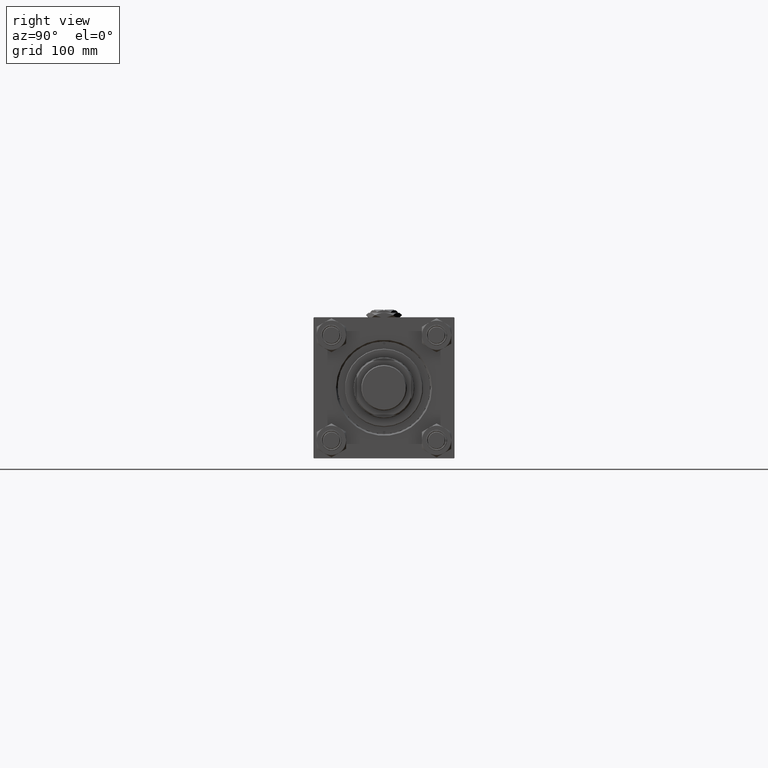
[diagram: clean part render]
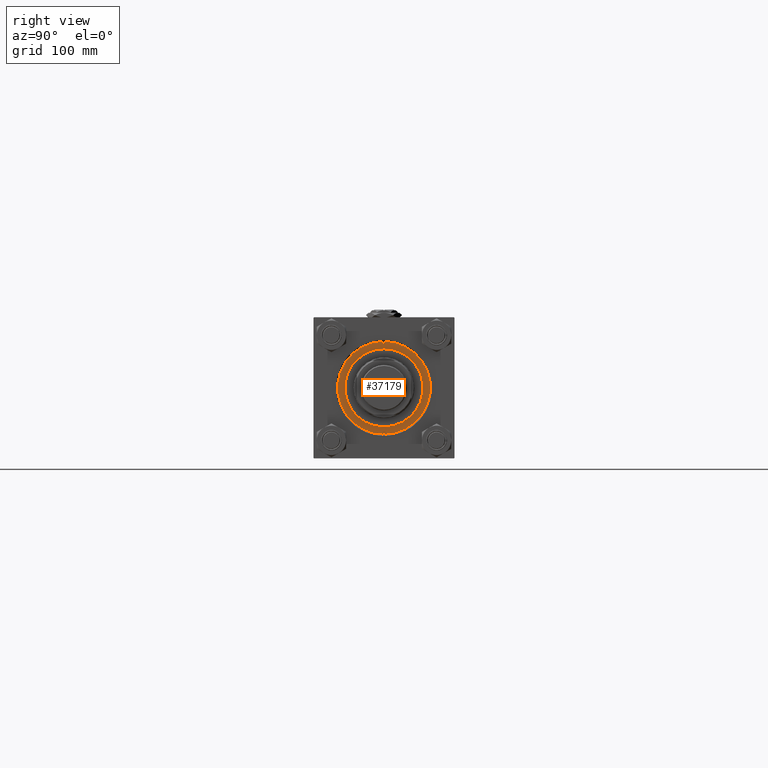
[diagram: same view with one face highlighted and labeled with its STEP entity id]
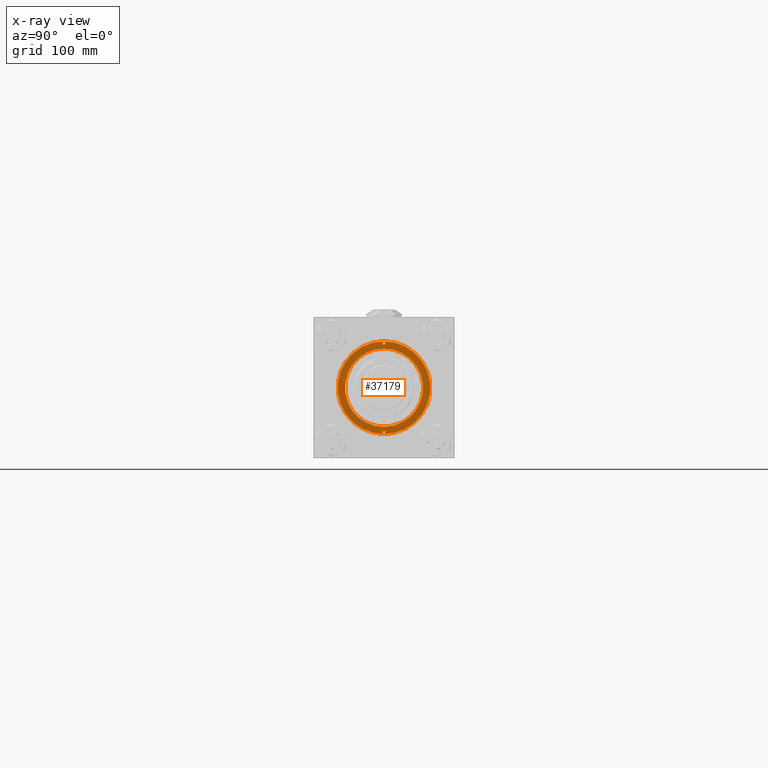
[diagram: x-ray of the same camera — body ghosted, the highlighted face saturated]
A machine part, right view. The second image highlights one B-rep face of the part: STEP entity #37179.
The next image is the same camera in x-ray: the body ghosted, the highlighted face saturated — about 0% of this face is hidden behind the body in this view.
In plain terms, the highlighted planar face has unit normal (1, 0, 0).
Its self-contained STEP definition (entity closure, byte-faithful):
#251 = ORIENTED_EDGE ( 'NONE', *, *, #17572, .T. ) ;
#877 = VERTEX_POINT ( 'NONE', #30965 ) ;
#1006 = VERTEX_POINT ( 'NONE', #22228 ) ;
#1171 = CIRCLE ( 'NONE', #23516, 1.249999999999994227 ) ;
#2447 = CARTESIAN_POINT ( 'NONE',  ( 41.00000000000000000, 0.000000000000000000, 26.69999999999999929 ) ) ;
#3249 = DIRECTION ( 'NONE',  ( 1.000000000000000000, 0.000000000000000000, 0.000000000000000000 ) ) ;
#4003 = CARTESIAN_POINT ( 'NONE',  ( 0.000000000000000000, 0.000000000000000000, 26.69999999999999929 ) ) ;
#4226 = CARTESIAN_POINT ( 'NONE',  ( -41.00000000000000000, 0.000000000000000000, 26.69999999999999929 ) ) ;
#4845 = ORIENTED_EDGE ( 'NONE', *, *, #39753, .F. ) ;
#5060 = FACE_BOUND ( 'NONE', #15099, .T. ) ;
#6520 = CIRCLE ( 'NONE', #52031, 36.00000000000000000 ) ;
#8819 = CIRCLE ( 'NONE', #15704, 42.75000000000000000 ) ;
#9383 = CARTESIAN_POINT ( 'NONE',  ( -41.00000000000000000, 0.000000000000000000, 26.69999999999999929 ) ) ;
#9885 = DIRECTION ( 'NONE',  ( 1.000000000000000000, 0.000000000000000000, 0.000000000000000000 ) ) ;
#10909 = ORIENTED_EDGE ( 'NONE', *, *, #30614, .F. ) ;
#11139 = ORIENTED_EDGE ( 'NONE', *, *, #32759, .T. ) ;
#11523 = DIRECTION ( 'NONE',  ( 0.000000000000000000, 0.000000000000000000, 1.000000000000000000 ) ) ;
#12052 = CARTESIAN_POINT ( 'NONE',  ( 0.000000000000000000, 0.000000000000000000, 26.69999999999999929 ) ) ;
#13951 = CIRCLE ( 'NONE', #32849, 42.75000000000000000 ) ;
#15099 = EDGE_LOOP ( 'NONE', ( #10909, #42234 ) ) ;
#15599 = CARTESIAN_POINT ( 'NONE',  ( -36.00000000000000000, 0.000000000000000000, 26.69999999999999929 ) ) ;
#15704 = AXIS2_PLACEMENT_3D ( 'NONE', #52350, #39986, #49105 ) ;
#16449 = ORIENTED_EDGE ( 'NONE', *, *, #20124, .F. ) ;
#17079 = VERTEX_POINT ( 'NONE', #18591 ) ;
#17132 = EDGE_LOOP ( 'NONE', ( #16449, #18195 ) ) ;
#17462 = DIRECTION ( 'NONE',  ( 1.000000000000000000, 0.000000000000000000, 0.000000000000000000 ) ) ;
#17572 = EDGE_CURVE ( 'NONE', #49007, #1006, #13951, .T. ) ;
#17577 = AXIS2_PLACEMENT_3D ( 'NONE', #4003, #36802, #32775 ) ;
#17817 = CARTESIAN_POINT ( 'NONE',  ( 41.00000000000000000, 0.000000000000000000, 26.69999999999999929 ) ) ;
#18195 = ORIENTED_EDGE ( 'NONE', *, *, #21142, .F. ) ;
#18591 = CARTESIAN_POINT ( 'NONE',  ( 36.00000000000000000, 4.408728476930470856E-15, 26.69999999999999929 ) ) ;
#19105 = VERTEX_POINT ( 'NONE', #20698 ) ;
#19967 = CIRCLE ( 'NONE', #27693, 1.249999999999994227 ) ;
#20124 = EDGE_CURVE ( 'NONE', #52989, #877, #1171, .T. ) ;
#20405 = FACE_BOUND ( 'NONE', #17132, .T. ) ;
#20552 = EDGE_LOOP ( 'NONE', ( #11139, #251 ) ) ;
#20629 = DIRECTION ( 'NONE',  ( 0.000000000000000000, 0.000000000000000000, 1.000000000000000000 ) ) ;
#20698 = CARTESIAN_POINT ( 'NONE',  ( 42.24999999999999289, 0.000000000000000000, 26.69999999999999929 ) ) ;
#20853 = CARTESIAN_POINT ( 'NONE',  ( 0.000000000000000000, 0.000000000000000000, 26.69999999999999929 ) ) ;
#21142 = EDGE_CURVE ( 'NONE', #877, #52989, #42384, .T. ) ;
#21775 = DIRECTION ( 'NONE',  ( 0.000000000000000000, 0.000000000000000000, 1.000000000000000000 ) ) ;
#22228 = CARTESIAN_POINT ( 'NONE',  ( -42.75000000000000000, 0.000000000000000000, 26.69999999999999929 ) ) ;
#22263 = DIRECTION ( 'NONE',  ( 0.000000000000000000, 0.000000000000000000, 1.000000000000000000 ) ) ;
#23163 = DIRECTION ( 'NONE',  ( 0.000000000000000000, 0.000000000000000000, 1.000000000000000000 ) ) ;
#23516 = AXIS2_PLACEMENT_3D ( 'NONE', #9383, #21775, #17462 ) ;
#23771 = VERTEX_POINT ( 'NONE', #45561 ) ;
#24635 = EDGE_CURVE ( 'NONE', #17079, #27928, #49283, .T. ) ;
#26298 = CARTESIAN_POINT ( 'NONE',  ( 0.000000000000000000, 0.000000000000000000, 26.69999999999999929 ) ) ;
#26425 = DIRECTION ( 'NONE',  ( 0.000000000000000000, 0.000000000000000000, 1.000000000000000000 ) ) ;
#26996 = CARTESIAN_POINT ( 'NONE',  ( -39.75000000000000711, 0.000000000000000000, 26.69999999999999929 ) ) ;
#27693 = AXIS2_PLACEMENT_3D ( 'NONE', #17817, #26425, #34223 ) ;
#27928 = VERTEX_POINT ( 'NONE', #15599 ) ;
#29005 = FACE_BOUND ( 'NONE', #47025, .T. ) ;
#29822 = EDGE_CURVE ( 'NONE', #23771, #19105, #39284, .T. ) ;
#30614 = EDGE_CURVE ( 'NONE', #19105, #23771, #19967, .T. ) ;
#30965 = CARTESIAN_POINT ( 'NONE',  ( -42.25000000000000000, 1.530808498934193050E-16, 26.69999999999999929 ) ) ;
#32138 = AXIS2_PLACEMENT_3D ( 'NONE', #12052, #11523, #36266 ) ;
#32424 = DIRECTION ( 'NONE',  ( 0.000000000000000000, 0.000000000000000000, 1.000000000000000000 ) ) ;
#32759 = EDGE_CURVE ( 'NONE', #1006, #49007, #8819, .T. ) ;
#32775 = DIRECTION ( 'NONE',  ( 1.000000000000000000, 0.000000000000000000, -0.000000000000000000 ) ) ;
#32849 = AXIS2_PLACEMENT_3D ( 'NONE', #20853, #32424, #37258 ) ;
#34223 = DIRECTION ( 'NONE',  ( 1.000000000000000000, 0.000000000000000000, 0.000000000000000000 ) ) ;
#36266 = DIRECTION ( 'NONE',  ( 1.000000000000000000, 0.000000000000000000, 0.000000000000000000 ) ) ;
#36802 = DIRECTION ( 'NONE',  ( 0.000000000000000000, 0.000000000000000000, 1.000000000000000000 ) ) ;
#37179 = ADVANCED_FACE ( 'NONE', ( #20405, #5060, #29005, #40826 ), #45383, .T. ) ;
#37258 = DIRECTION ( 'NONE',  ( 1.000000000000000000, 0.000000000000000000, 0.000000000000000000 ) ) ;
#39284 = CIRCLE ( 'NONE', #47872, 1.249999999999994227 ) ;
#39753 = EDGE_CURVE ( 'NONE', #27928, #17079, #6520, .T. ) ;
#39986 = DIRECTION ( 'NONE',  ( 0.000000000000000000, 0.000000000000000000, 1.000000000000000000 ) ) ;
#40826 = FACE_OUTER_BOUND ( 'NONE', #20552, .T. ) ;
#42234 = ORIENTED_EDGE ( 'NONE', *, *, #29822, .F. ) ;
#42384 = CIRCLE ( 'NONE', #48403, 1.249999999999994227 ) ;
#43471 = CARTESIAN_POINT ( 'NONE',  ( 42.75000000000000000, 5.235365066354935472E-15, 26.69999999999999929 ) ) ;
#45383 = PLANE ( 'NONE',  #17577 ) ;
#45561 = CARTESIAN_POINT ( 'NONE',  ( 39.75000000000000000, 1.530808498934193050E-16, 26.69999999999999929 ) ) ;
#46598 = ORIENTED_EDGE ( 'NONE', *, *, #24635, .F. ) ;
#47025 = EDGE_LOOP ( 'NONE', ( #4845, #46598 ) ) ;
#47872 = AXIS2_PLACEMENT_3D ( 'NONE', #2447, #23163, #3249 ) ;
#48403 = AXIS2_PLACEMENT_3D ( 'NONE', #4226, #20629, #49907 ) ;
#49007 = VERTEX_POINT ( 'NONE', #43471 ) ;
#49105 = DIRECTION ( 'NONE',  ( 1.000000000000000000, 0.000000000000000000, 0.000000000000000000 ) ) ;
#49283 = CIRCLE ( 'NONE', #32138, 36.00000000000000000 ) ;
#49907 = DIRECTION ( 'NONE',  ( 1.000000000000000000, 0.000000000000000000, 0.000000000000000000 ) ) ;
#52031 = AXIS2_PLACEMENT_3D ( 'NONE', #26298, #22263, #9885 ) ;
#52350 = CARTESIAN_POINT ( 'NONE',  ( 0.000000000000000000, 0.000000000000000000, 26.69999999999999929 ) ) ;
#52989 = VERTEX_POINT ( 'NONE', #26996 ) ;